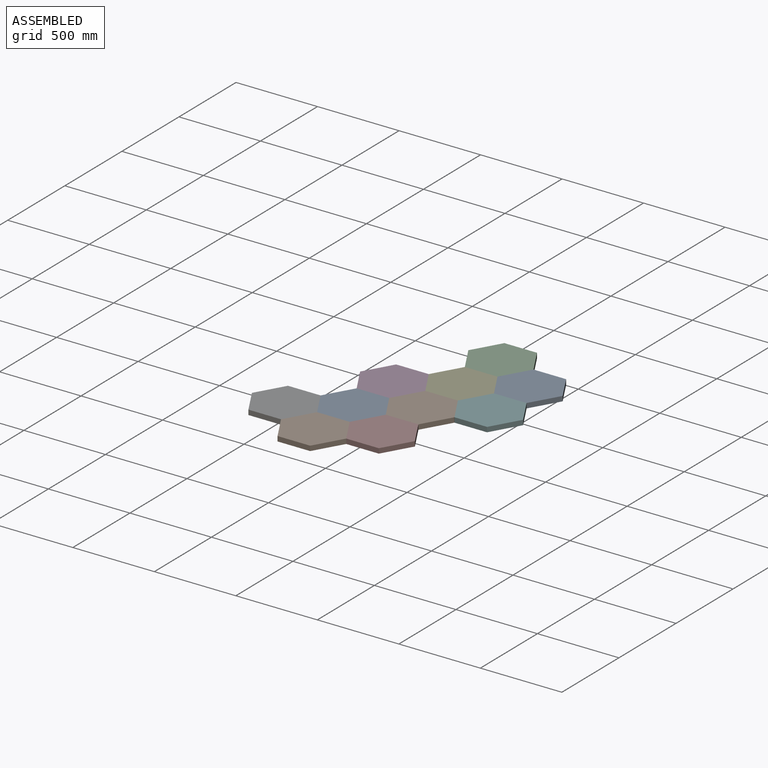
[diagram: assembled view]
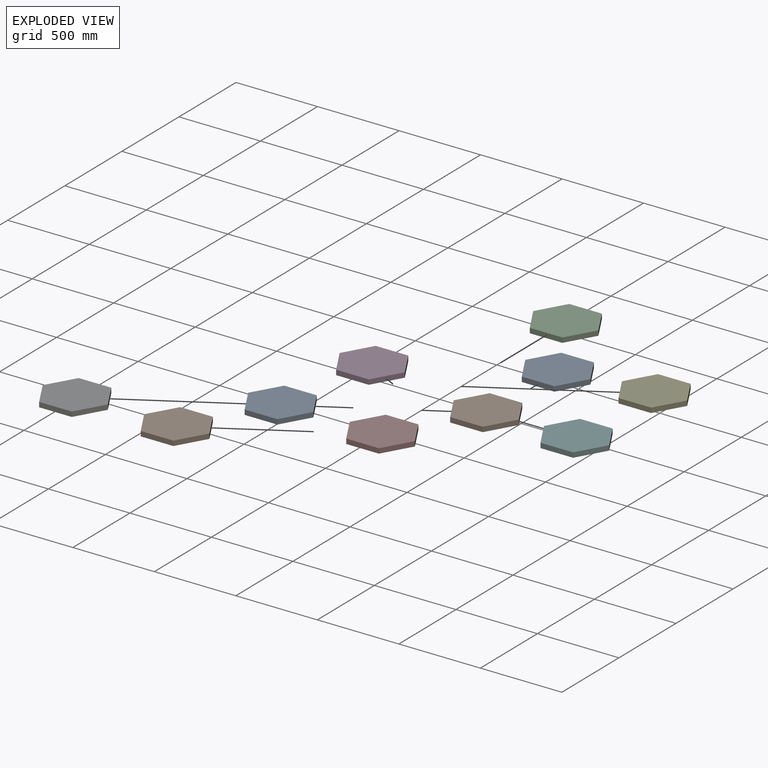
[diagram: exploded view]
GUIDED TOUR — MATED ASSEMBLY (Onshape document cc337fc0114fd193e5b0c7d4, AutoMate assembly cc337fc0114fd193e5b0c7d4_ae73d6ae7dfd9c842e497288_6d003c8193dd4a88a32cff9e_default)

This assembly has 10 components, labeled P0..P9 below (a component is one placed occurrence of a part; the same part can appear more than once), held together by 9 mates. A mate is a constraint between two components; its type names the relative motion it leaves free:
  FASTENED — locks the two components together rigidly (no relative motion).
Axis/direction vectors are unit vectors and 'through' points are millimeter coordinates, both in the assembly's world frame.

MATES
  1. FASTENED "Fastened 2": P1 <-> P3, direction (-0.866, 0.500, 0.000) through (-42.88, -64.63, 171.07) mm
  2. FASTENED "Fastened 1": P1 <-> P0, direction (-0.866, -0.500, 0.000) through (-42.88, -411.04, 141.07) mm
  3. FASTENED "Fastened 8": P8 <-> P5, direction (0.000, -1.000, 0.000) through (257.12, 108.57, 171.07) mm
  4. FASTENED "Fastened 5": P6 <-> P0, direction (0.866, 0.500, 0.000) through (-442.88, -411.04, 141.07) mm
  5. FASTENED "Fastened 6": P4 <-> P3, direction (-0.866, -0.500, 0.000) through (-142.88, 108.57, 141.07) mm
  6. FASTENED "Fastened 4": P9 <-> P7, direction (0.866, 0.500, 0.000) through (-142.88, -584.25, 141.07) mm
  7. FASTENED "Fastened 7": P5 <-> P4, direction (-0.866, 0.500, 0.000) through (257.12, 108.57, 141.07) mm
  8. FASTENED "Fastened 3": P7 <-> P1, direction (0.000, 1.000, 0.000) through (-42.88, -411.04, 141.07) mm
  9. FASTENED "Fastened 9": P2 <-> P4, direction (0.000, -1.000, 0.000) through (-42.88, 281.78, 171.07) mm

ASSEMBLY ORDER
  1. P7 — the base component [order verified]
  2. P3 [order verified]
  3. P0 [order verified]
  4. P1 [order verified]
  5. P9 [order verified]
  6. P5 [order verified]
  7. P8 [order verified]
  8. P2 [order verified]
  9. P4 [order verified]
  10. P6 [order verified]
Order-tag legend:
  [order verified] — this step's position reverses a verified removal order: the component was checked to insert without passing through the ones already placed.

Of the 10 components, 10 carry the full construction recipe — the FeatureScript program that regenerates the part's solid from scratch; the rest are supplied as boundary geometry only.
Each toured component is shown spotlighted twice — in the assembled view, then in the exploded view, where a leader line traces a displaced component back to its assembled socket (saturated green if recipe-attached, orange if geometry-only; every other component desaturated gray) — followed by its recipe or geometry summary and the mates that hold it.
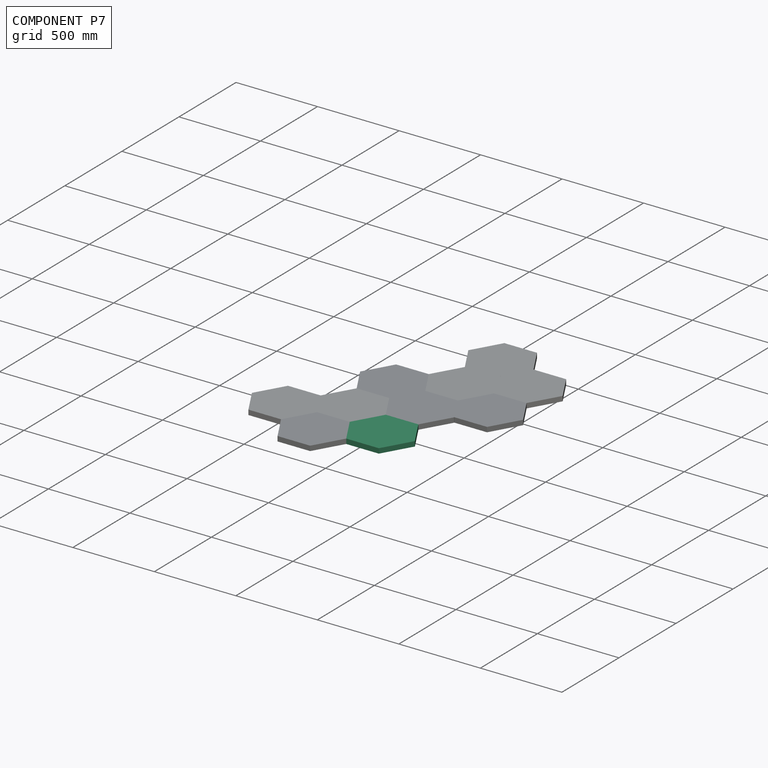
[diagram: component P7 — assembled]
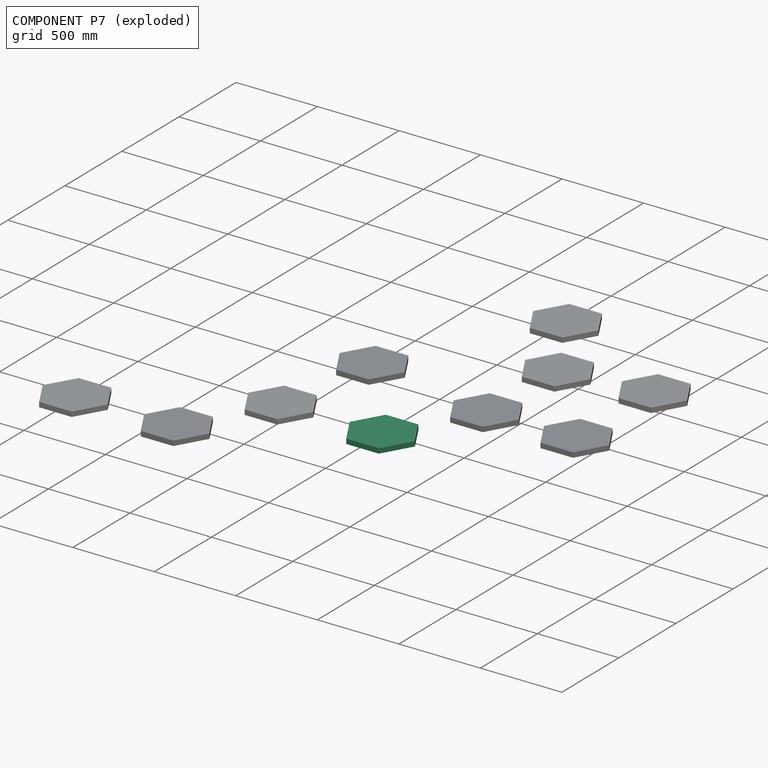
[diagram: component P7 — exploded]
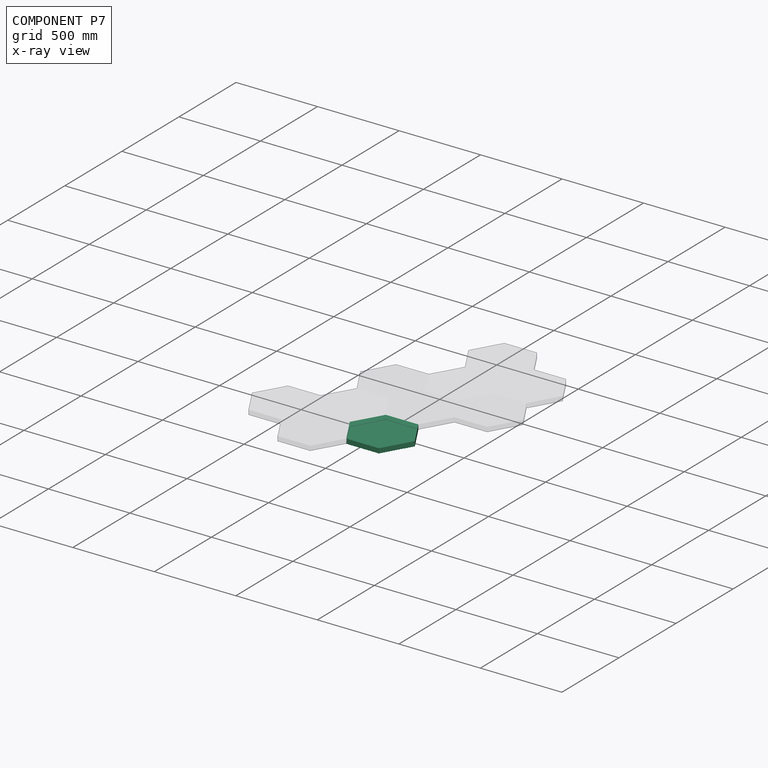
[diagram: component P7 — x-ray view]
COMPONENT P7 — same part as P0 (CADFS 00209437); its construction recipe is shown at P0.
Held by: FASTENED mate "Fastened 4" to P9; FASTENED mate "Fastened 3" to P1.
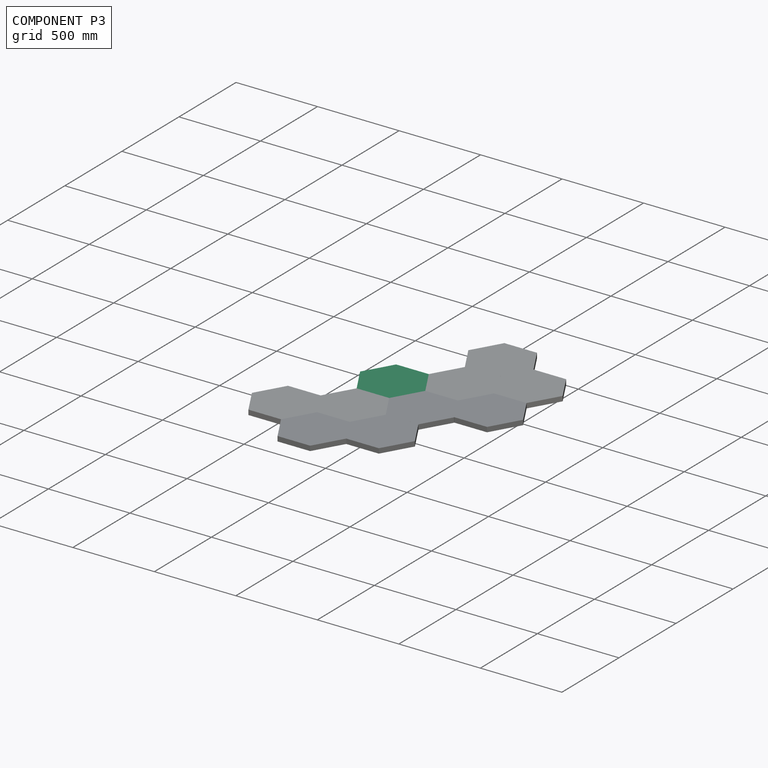
[diagram: component P3 — assembled]
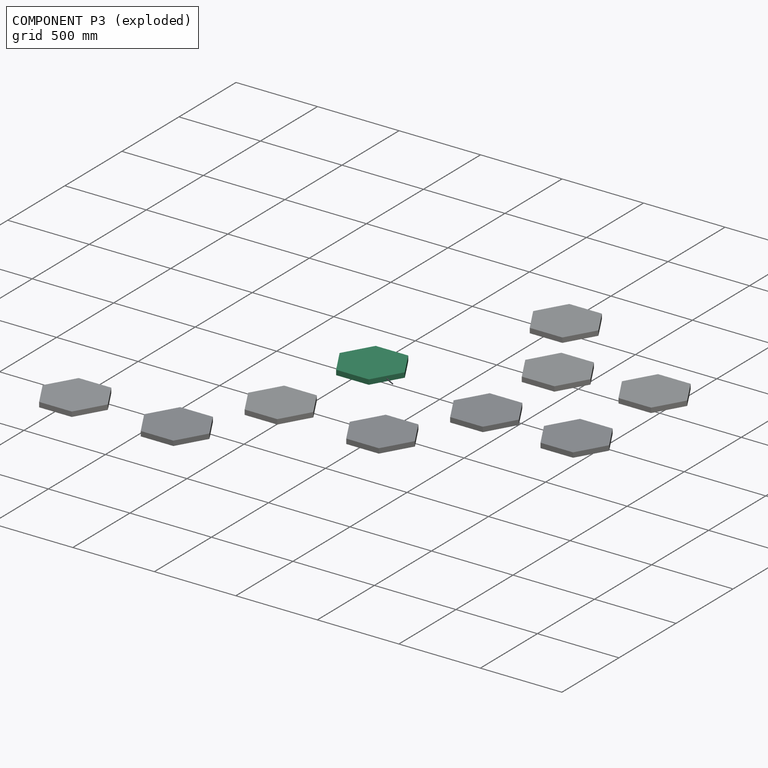
[diagram: component P3 — exploded]
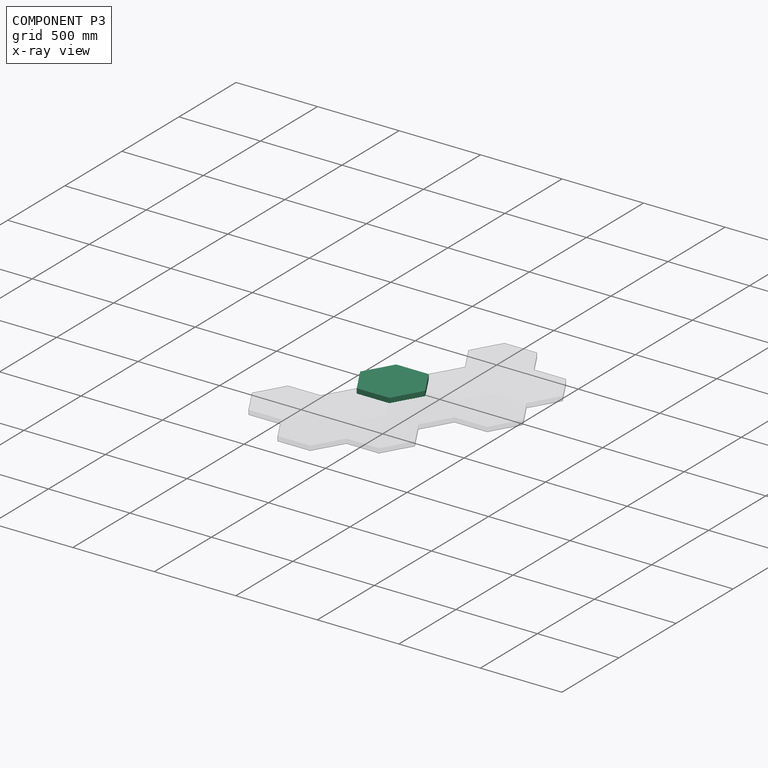
[diagram: component P3 — x-ray view]
COMPONENT P3 — same part as P0 (CADFS 00209437); its construction recipe is shown at P0.
Held by: FASTENED mate "Fastened 2" to P1; FASTENED mate "Fastened 6" to P4.
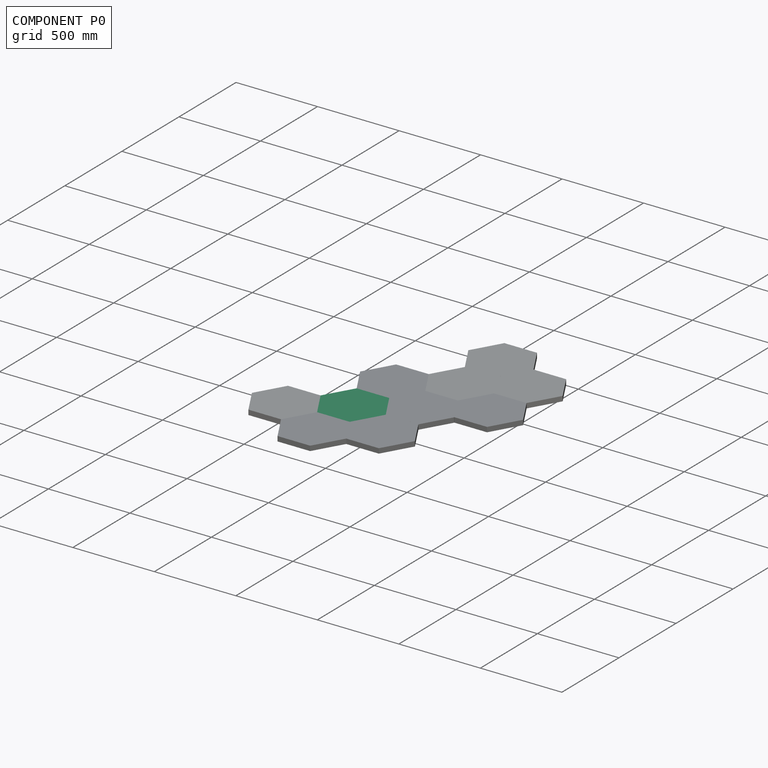
[diagram: component P0 — assembled]
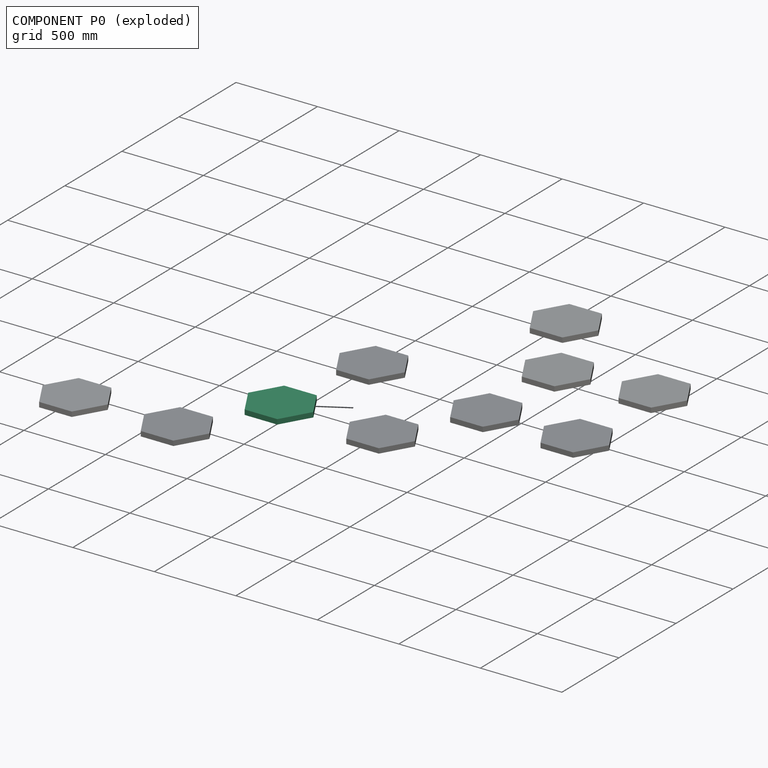
[diagram: component P0 — exploded]
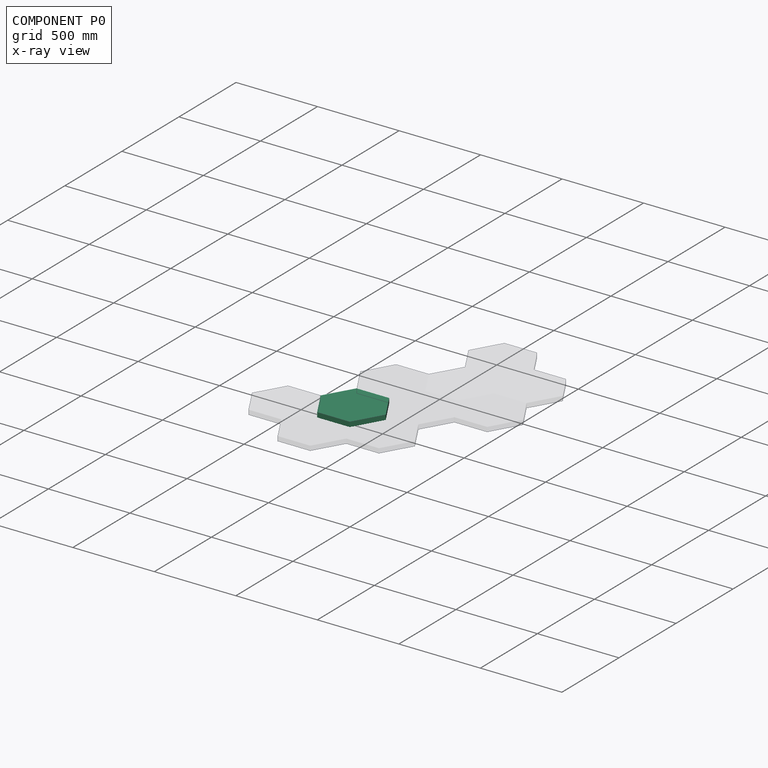
[diagram: component P0 — x-ray view]
COMPONENT P0 — recipe-attached (CADFS 00209437, mesh-verified: the recipe's output STEP matches this component's geometry to below the mesh-comparison resolution (tessellation chordal tolerance ~0.795 mm)).
Held by: FASTENED mate "Fastened 1" to P1; FASTENED mate "Fastened 5" to P6.
Construction recipe (FeatureScript — the CAD program that rebuilds this solid; sketch coordinates are in the units given by the * unit suffixes, e.g. mm):

FeatureScript 1511;
import(path : "onshape/std/geometry.fs", version : "1511.0");
import(path : "onshape/std/common.fs", version : "1511.0");
const mm = millimeter;
const VERTEX = EntityType.VERTEX;
const EDGE = EntityType.EDGE;
const FACE = EntityType.FACE;
const BODY = EntityType.BODY;
function v(x, y){return vector(x, y);}
function OD(order){return orderDisambiguation(order);}
function OSD(set){return originalSetDisambiguation(set);}
function TD(topology){return topologyDisambiguation(topology);}
function TDD(query){return trueDependencyDisambiguation(query);}
function sQuery(a, b, c) {return sketchEntityQuery(a, b, c);}

annotation { "Feature Type Name" : "Feature", "Feature Type Description" : "" }
export const myFeature = defineFeature(function(context is Context, id is Id, definition is map)
    precondition{}
    {
        {
            var Q0;
            Q0=qCreatedBy(makeId("Top.planeOp"),FACE);
            var sketch = newSketch(context, id + "F0", { "sketchPlane" : qUnion([Q0])});
            skCircle(sketch, "E0.cCircle", {"center": v(-103.97, -69.15) * mm, "radius": 173.2 * mm, "construction": true});
            skLineSegment(sketch, "E0.0", {"start": v(-203.97, 104.06) * mm, "end": v(-3.97, 104.06) * mm});
            skLineSegment(sketch, "E0.1", {"start": v(-3.97, 104.06) * mm, "end": v(96.03, -69.15) * mm});
            skLineSegment(sketch, "E0.2", {"start": v(96.03, -69.15) * mm, "end": v(-3.97, -242.36) * mm});
            skLineSegment(sketch, "E0.3", {"start": v(-3.97, -242.36) * mm, "end": v(-203.97, -242.36) * mm});
            skLineSegment(sketch, "E0.4", {"start": v(-203.97, -242.36) * mm, "end": v(-303.97, -69.15) * mm});
            skLineSegment(sketch, "E0.5", {"start": v(-303.97, -69.15) * mm, "end": v(-203.97, 104.06) * mm});
            skPoint(sketch, "E0.0.midPoint", {"position": v(-103.97, 104.06) * mm});
            skSolve(sketch);
        }
        {
            var Q0;
            Q0=makeQuery(id+"F0.imprint","IMPRINT",FACE,{"disambiguationData":[TD([[makeQuery(id+"F0.imprint","IMPRINT",EDGE,{"derivedFrom":sQuery(id+"F0.wireOp",EDGE,"E0.0")}),-1.0]])]});
            extrude(context, id + "F1", {"entities" : qUnion([Q0]), "depth" : 30 * mm});
        }
    });
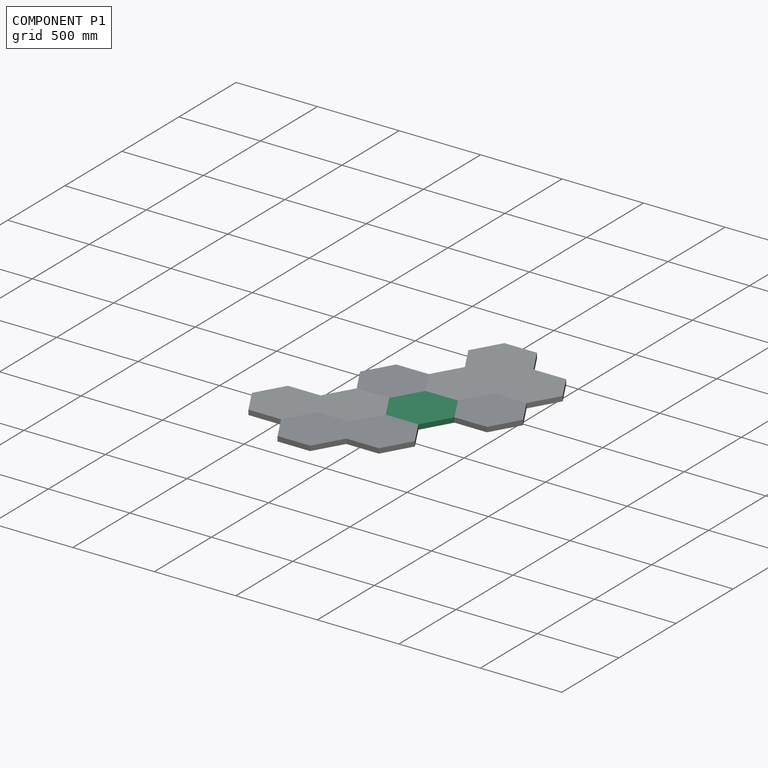
[diagram: component P1 — assembled]
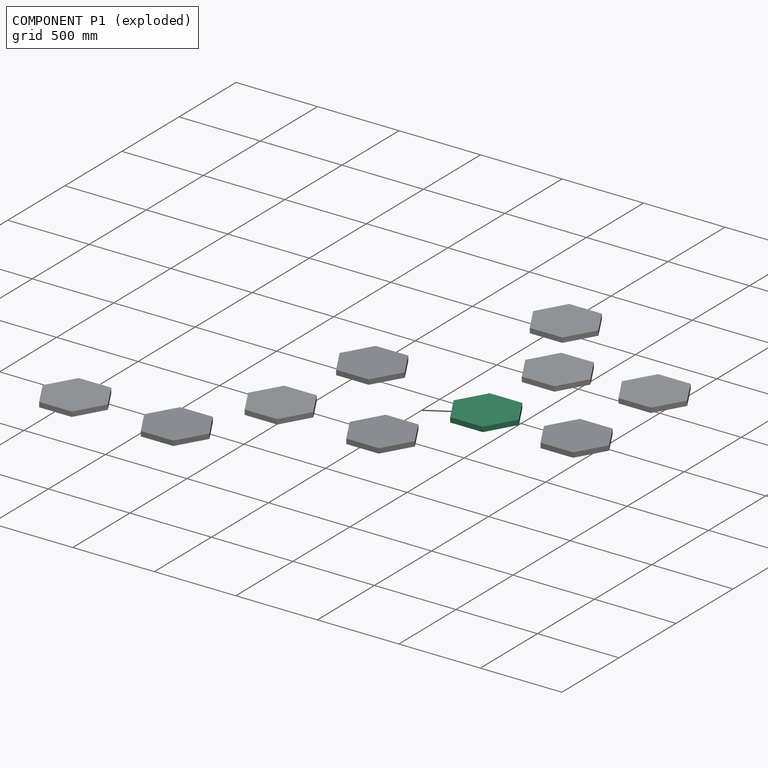
[diagram: component P1 — exploded]
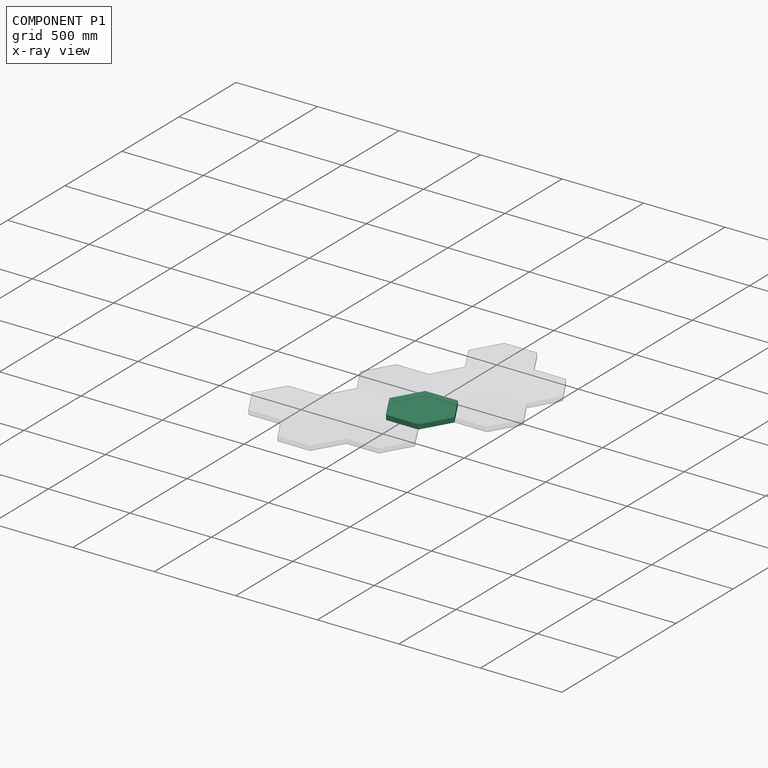
[diagram: component P1 — x-ray view]
COMPONENT P1 — same part as P0 (CADFS 00209437); its construction recipe is shown at P0.
Held by: FASTENED mate "Fastened 2" to P3; FASTENED mate "Fastened 1" to P0; FASTENED mate "Fastened 3" to P7.
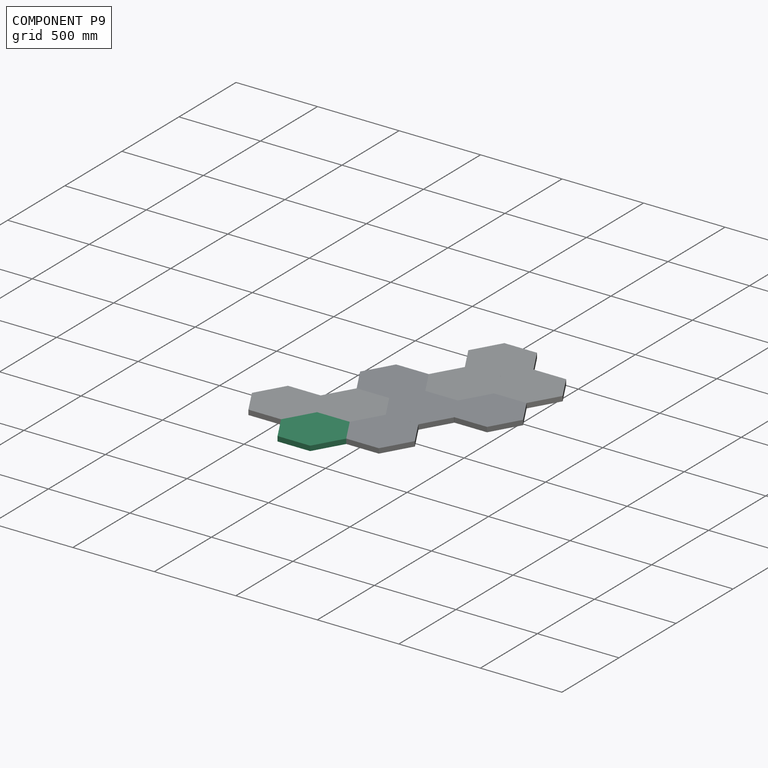
[diagram: component P9 — assembled]
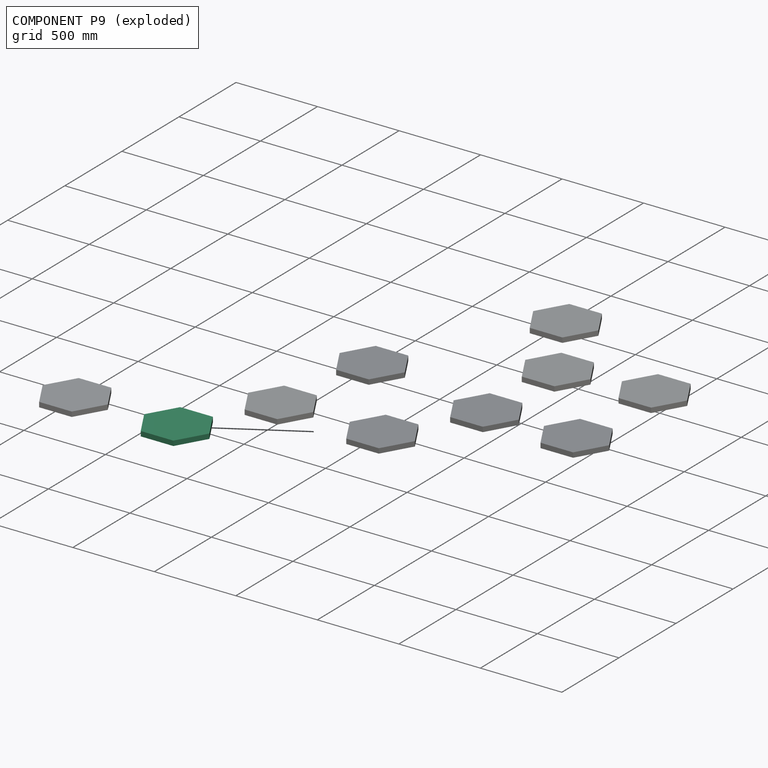
[diagram: component P9 — exploded]
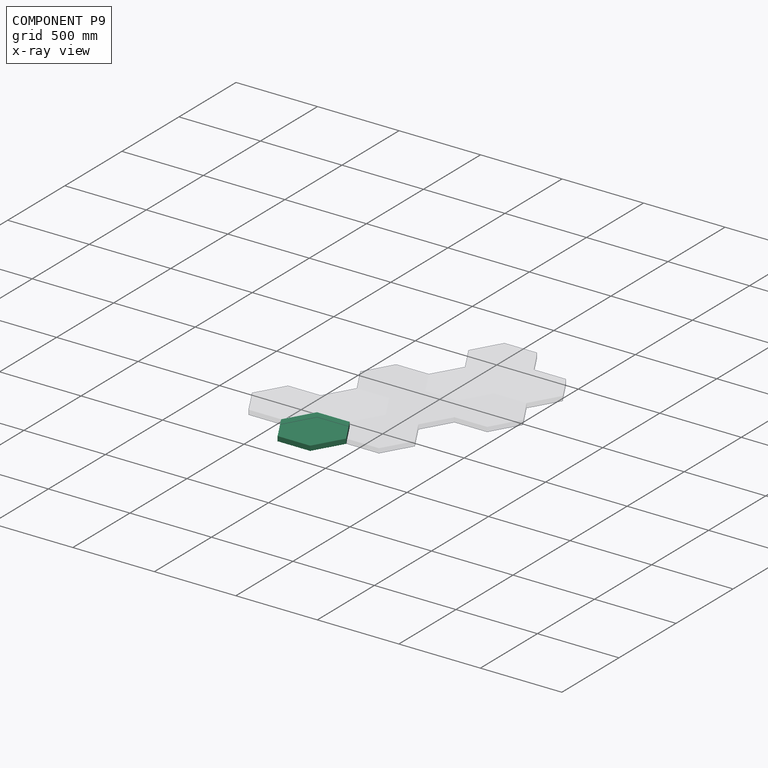
[diagram: component P9 — x-ray view]
COMPONENT P9 — same part as P0 (CADFS 00209437); its construction recipe is shown at P0.
Held by: FASTENED mate "Fastened 4" to P7.
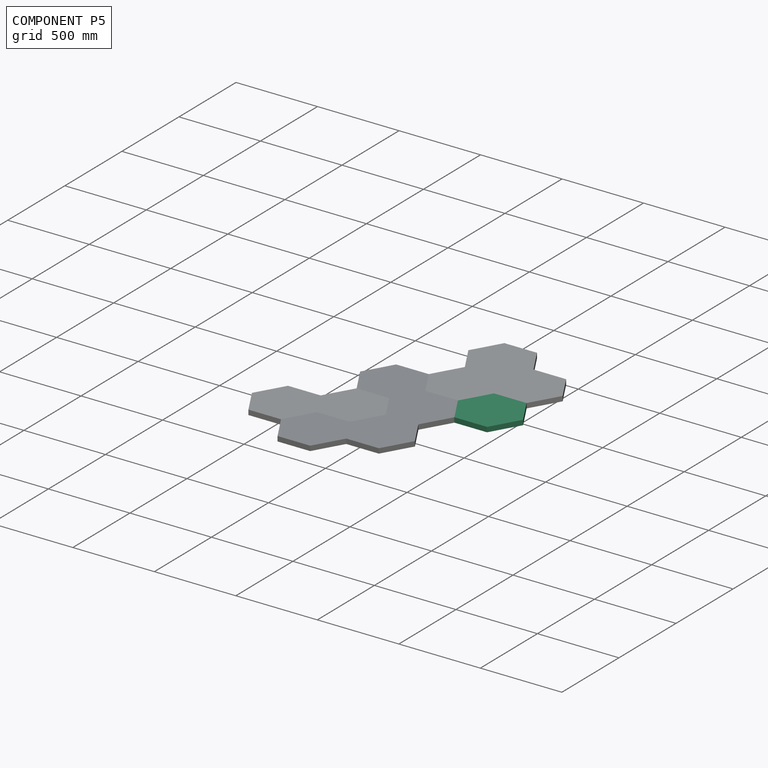
[diagram: component P5 — assembled]
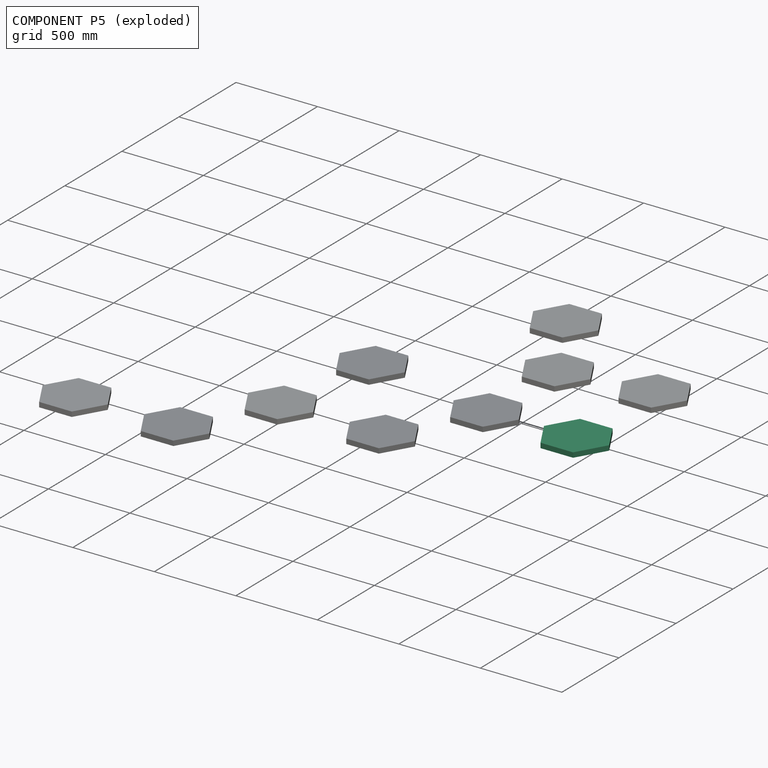
[diagram: component P5 — exploded]
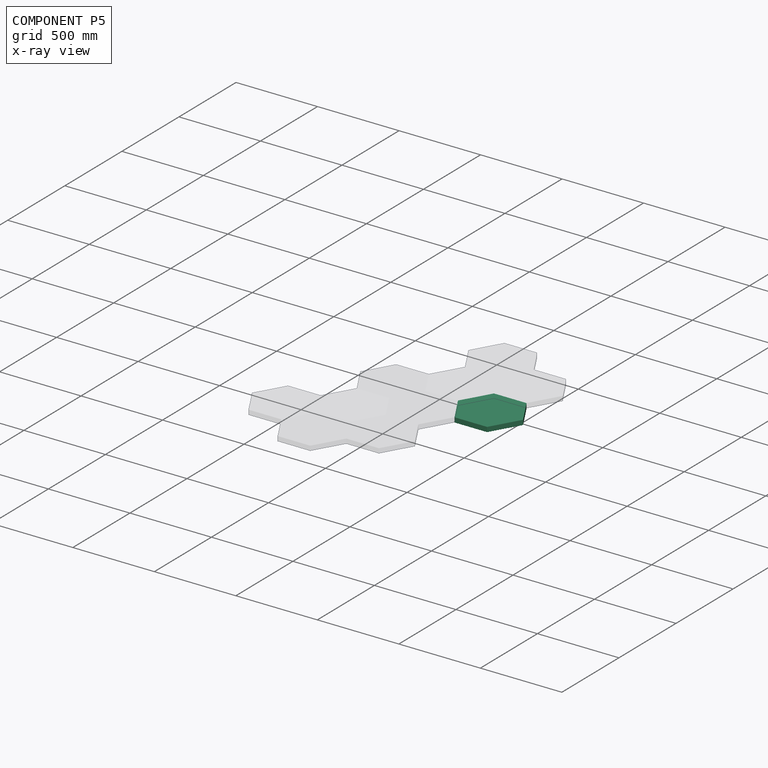
[diagram: component P5 — x-ray view]
COMPONENT P5 — same part as P0 (CADFS 00209437); its construction recipe is shown at P0.
Held by: FASTENED mate "Fastened 8" to P8; FASTENED mate "Fastened 7" to P4.
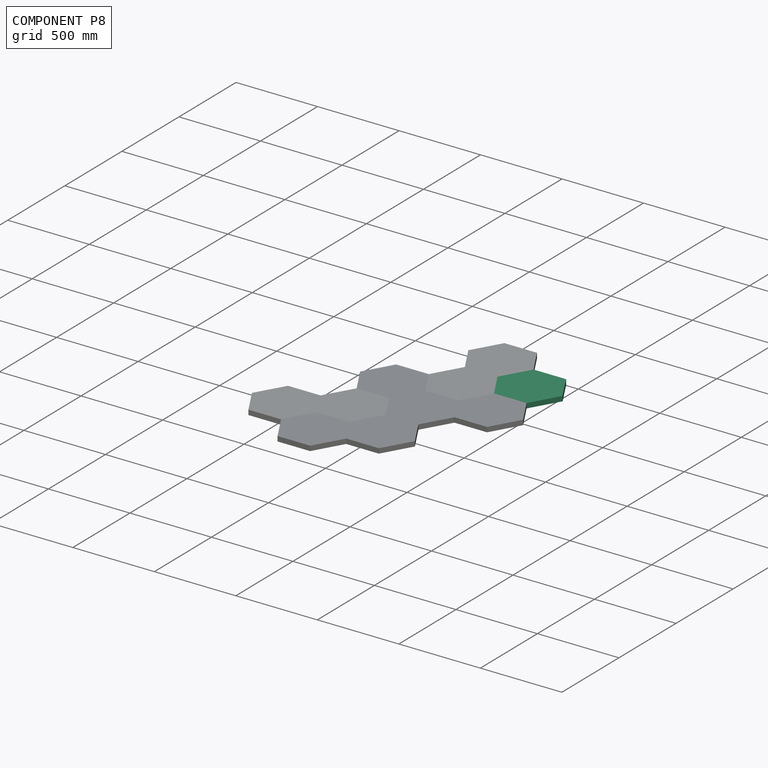
[diagram: component P8 — assembled]
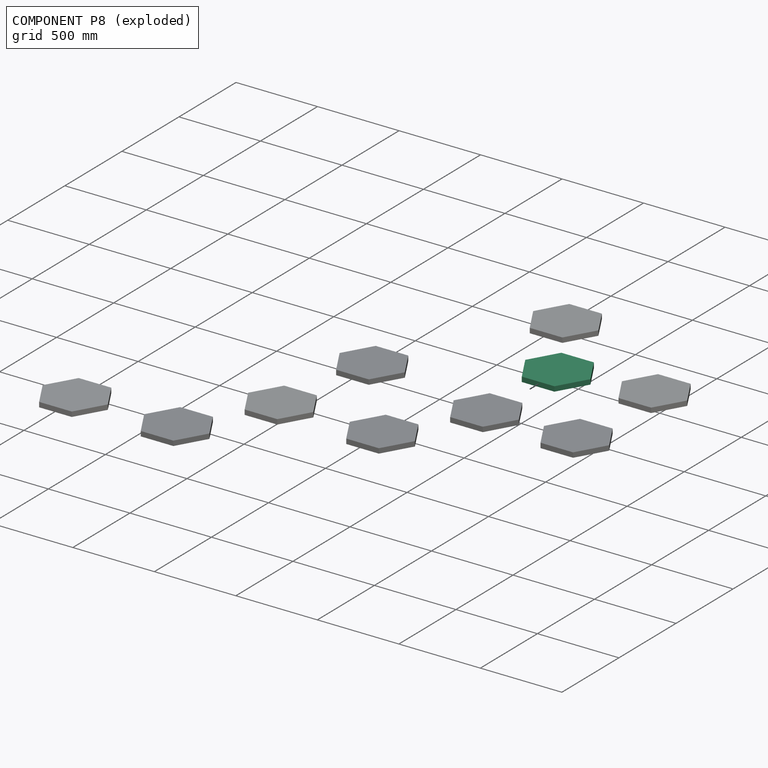
[diagram: component P8 — exploded]
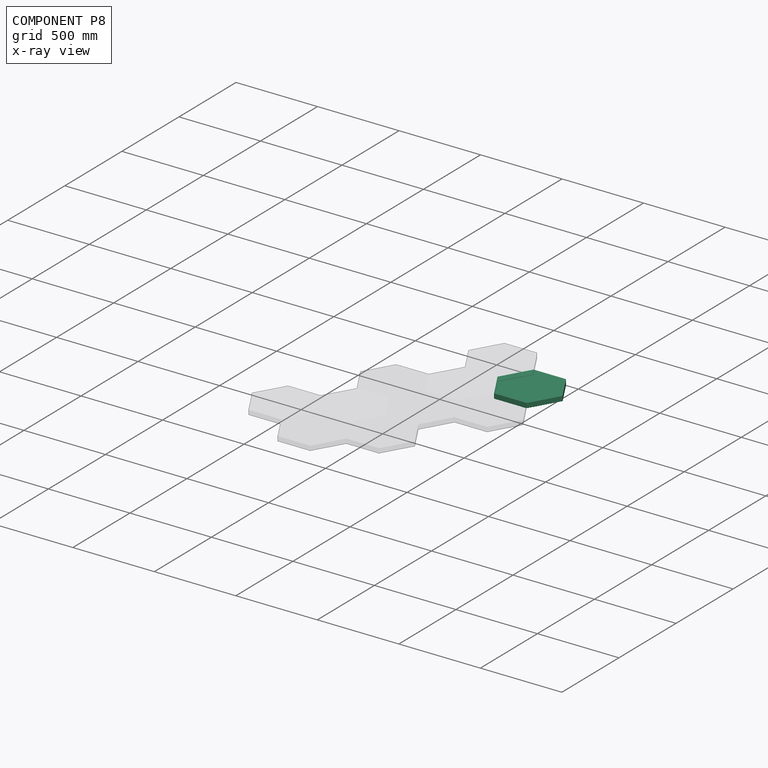
[diagram: component P8 — x-ray view]
COMPONENT P8 — same part as P0 (CADFS 00209437); its construction recipe is shown at P0.
Held by: FASTENED mate "Fastened 8" to P5.
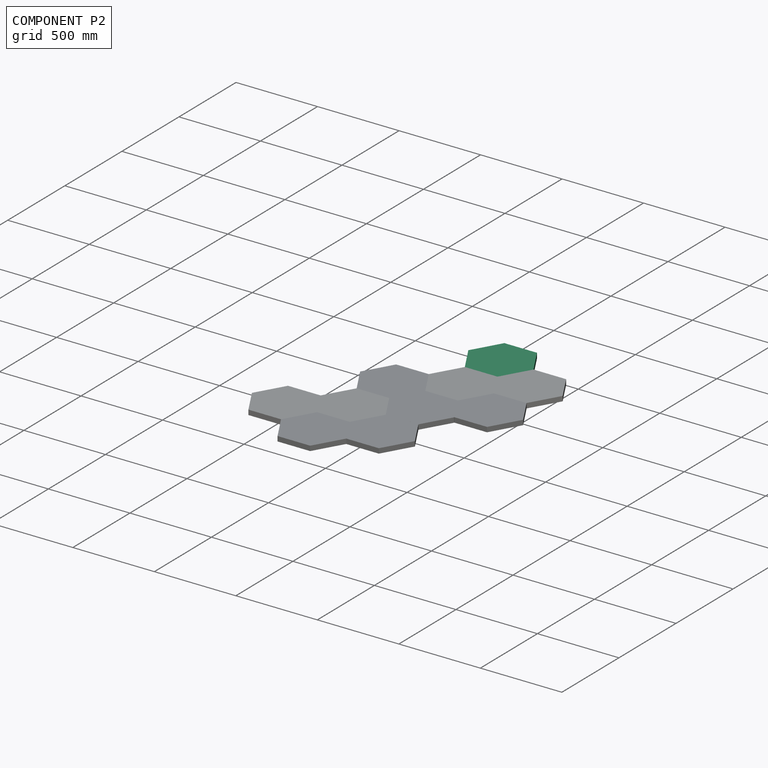
[diagram: component P2 — assembled]
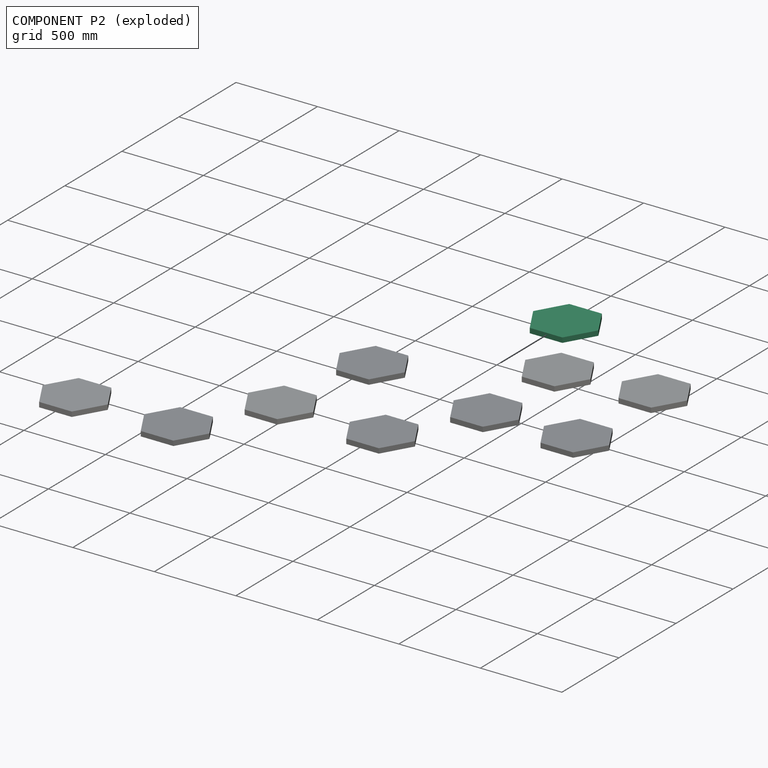
[diagram: component P2 — exploded]
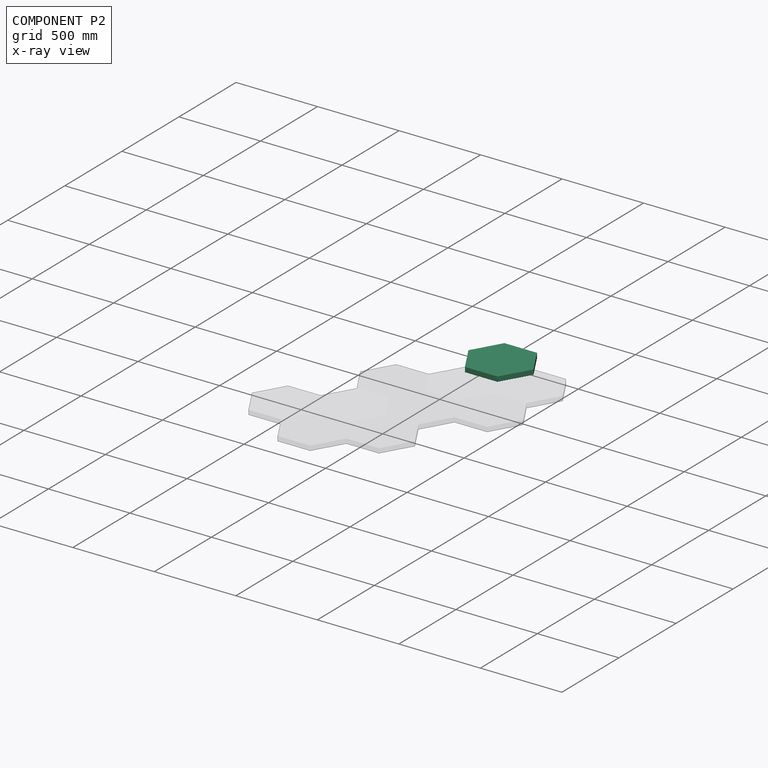
[diagram: component P2 — x-ray view]
COMPONENT P2 — same part as P0 (CADFS 00209437); its construction recipe is shown at P0.
Held by: FASTENED mate "Fastened 9" to P4.
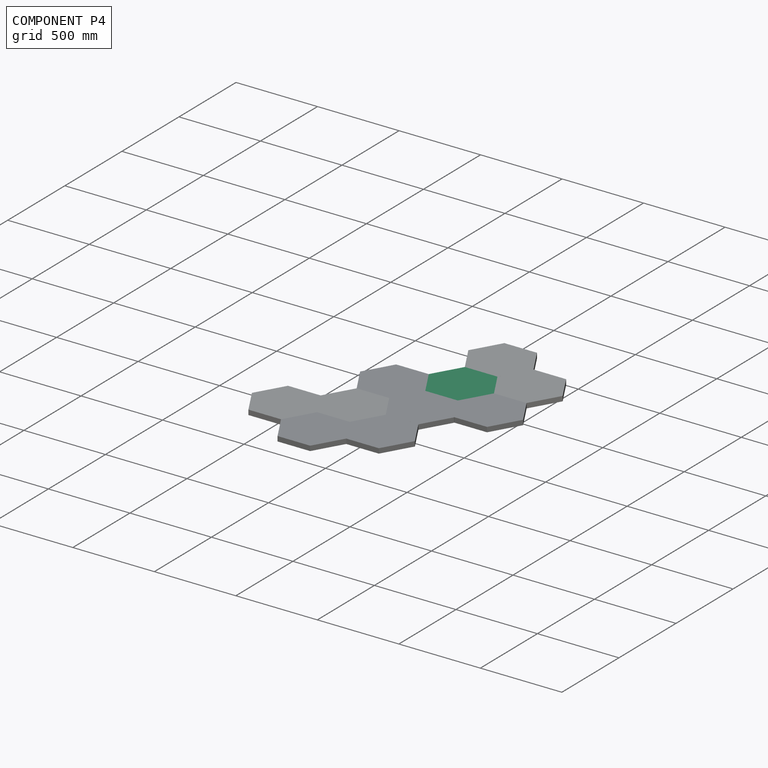
[diagram: component P4 — assembled]
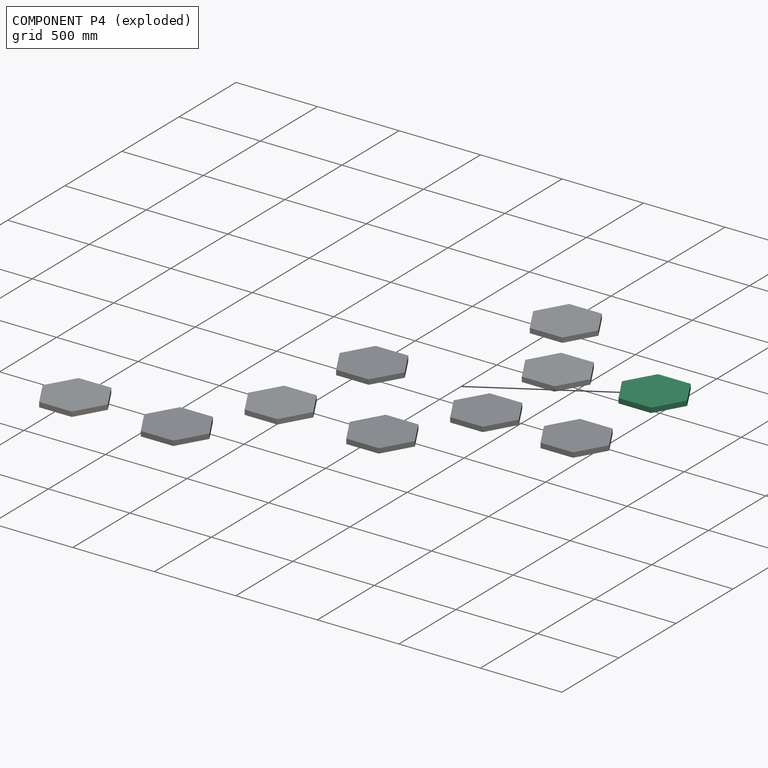
[diagram: component P4 — exploded]
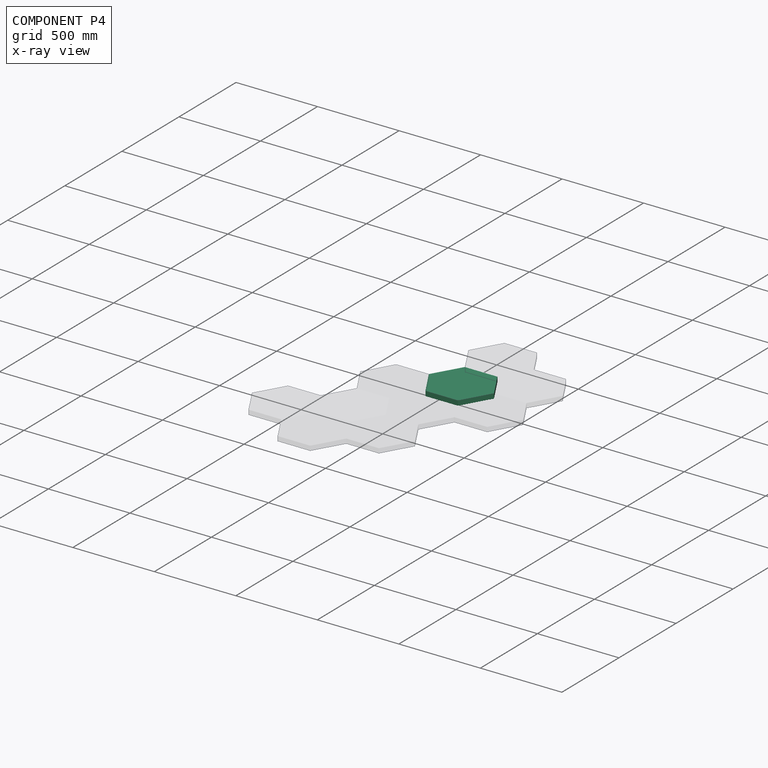
[diagram: component P4 — x-ray view]
COMPONENT P4 — same part as P0 (CADFS 00209437); its construction recipe is shown at P0.
Held by: FASTENED mate "Fastened 6" to P3; FASTENED mate "Fastened 7" to P5; FASTENED mate "Fastened 9" to P2.
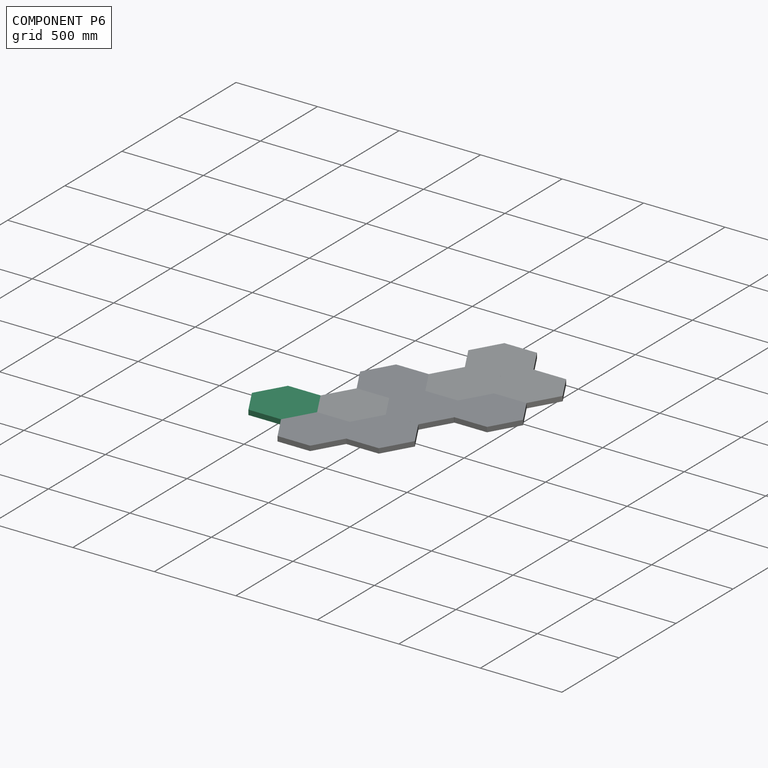
[diagram: component P6 — assembled]
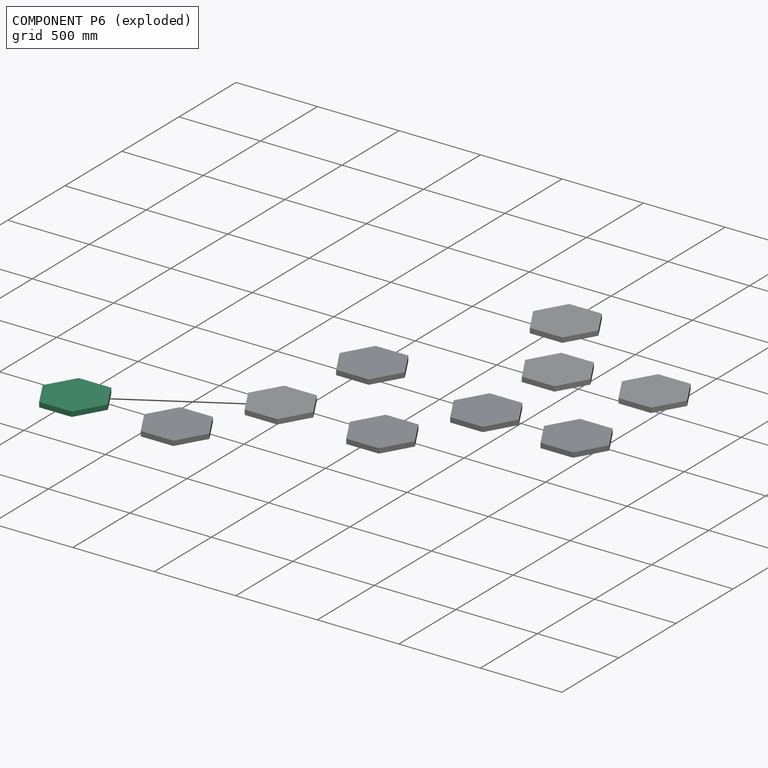
[diagram: component P6 — exploded]
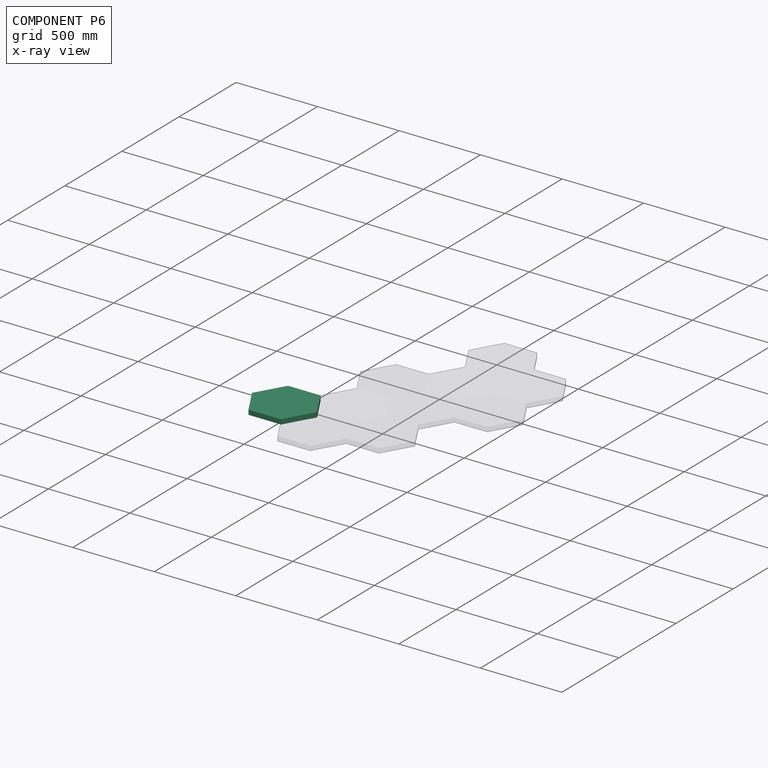
[diagram: component P6 — x-ray view]
COMPONENT P6 — same part as P0 (CADFS 00209437); its construction recipe is shown at P0.
Held by: FASTENED mate "Fastened 5" to P0.
PROVENANCE & LICENSES
Assembly (occurrences, transforms, mates, per-part STEP geometry): AutoMate dataset, Zenodo record 7776208, CC0.
Construction recipes: CADFS (HuggingFace VladPyatov/CADFS, CC-BY-4.0, layered over the ABC dataset), FeatureScript reconstruction programs keyed by ABC model id.
Join: ABC meta listings map ABC model id -> Onshape documentId; within a shared document, parts are matched by geometric signature (bounding-box dims + volume at 0.1% relative tolerance, exact B-rep face/solid counts).
Verification: 10 of this assembly's 10 components carry a recipe attachment, and every attachment is mesh-verified: the CADFS STEP and the AutoMate member STEP were compared as meshes in their shared local frame (symmetric sampled-point-to-mesh distance); worst across the 10 attachments: below the mesh-comparison resolution (tessellation chordal tolerance ~0.795 mm) on a 530 mm part.
Renders: orthographic iso camera (az 35 / el 25); the floor grid conveys scale (grid pitch printed in each image; no ruler). In the exploded view each component is displaced by its stored offset vector: the offsets alone carry the explosion direction (mate normal/axis signs are not orientation cues and do not encode it), and separation distances are assigned per mate-chain, not proportionally to assembly-order depth.
